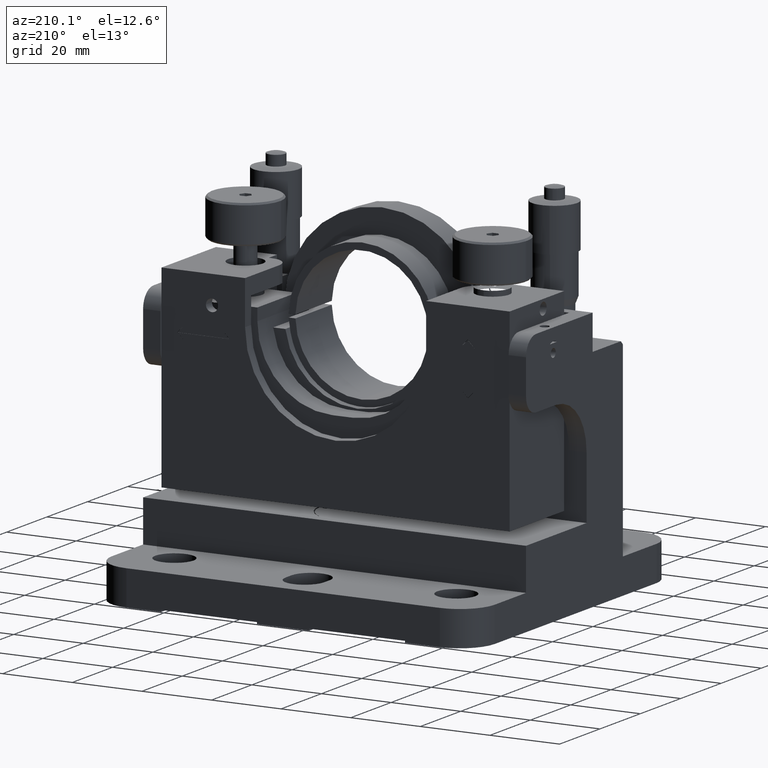
[diagram: clean part render]
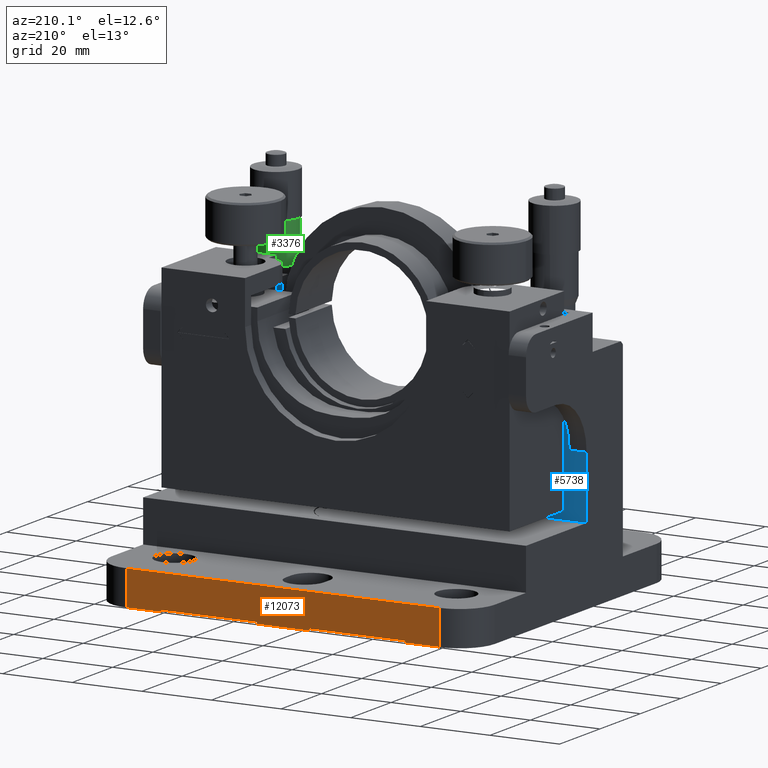
[diagram: same view with three faces highlighted in distinct colors, each labeled with its STEP entity id]
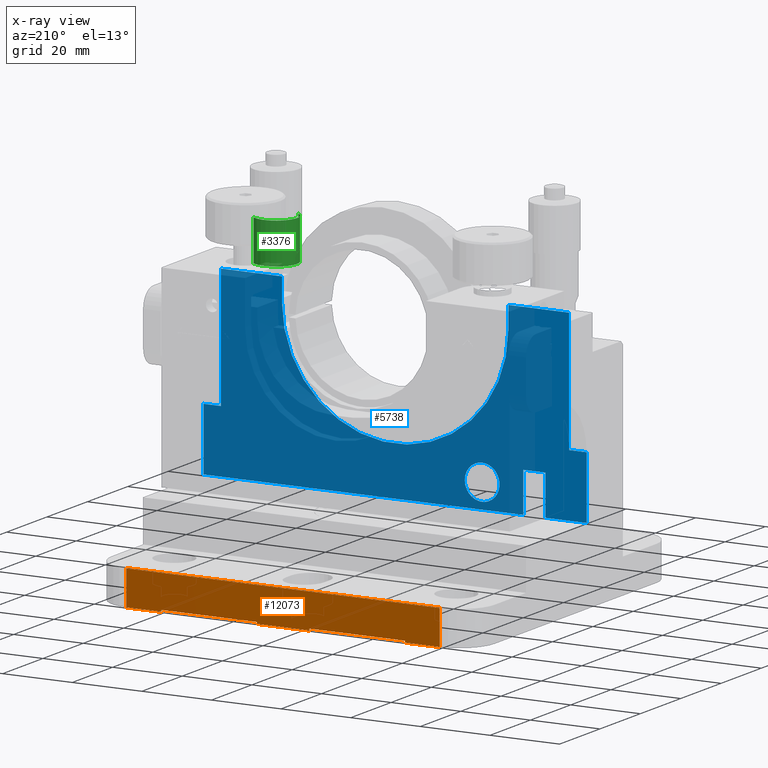
[diagram: x-ray of the same camera — body ghosted, the three highlighted faces saturated]
A machine part, auxiliary view with three faces highlighted in distinct colors.
The next image is the same camera in x-ray (body ghosted, the three faces saturated) — at least one of them is partly hidden behind the body in this view.
Their STEP definitions:

[orange] entity #12073 — the highlighted planar face has unit normal (0, -1, -0).
#140 = ORIENTED_EDGE ( 'NONE', *, *, #12176, .T. ) ;
#533 = CARTESIAN_POINT ( 'NONE',  ( -44.99999999999997200, 49.99999999999997200, -80.38971963390974900 ) ) ;
#564 = VERTEX_POINT ( 'NONE', #11352 ) ;
#645 = CARTESIAN_POINT ( 'NONE',  ( -44.99999999999997200, 49.99999999999997200, -80.38971963390974900 ) ) ;
#844 = EDGE_CURVE ( 'NONE', #11275, #14457, #12678, .T. ) ;
#1095 = ORIENTED_EDGE ( 'NONE', *, *, #15113, .F. ) ;
#1178 = CARTESIAN_POINT ( 'NONE',  ( -7.499999999999984000, 50.00000000000006400, -89.88971963390972100 ) ) ;
#1503 = VERTEX_POINT ( 'NONE', #2478 ) ;
#1947 = DIRECTION ( 'NONE',  ( 1.000000000000000000, 1.822474341419474400E-017, 4.369730032096560000E-016 ) ) ;
#1965 = EDGE_CURVE ( 'NONE', #3820, #3140, #14394, .T. ) ;
#2034 = EDGE_CURVE ( 'NONE', #13314, #3140, #10322, .T. ) ;
#2105 = CARTESIAN_POINT ( 'NONE',  ( 55.00000000000000700, 49.99999999999997900, -90.38971963390969200 ) ) ;
#2152 = CARTESIAN_POINT ( 'NONE',  ( -34.99999999999999300, 50.00000000000007100, -89.88971963390973500 ) ) ;
#2350 = LINE ( 'NONE', #15971, #5633 ) ;
#2478 = CARTESIAN_POINT ( 'NONE',  ( 7.500000000000016000, 50.00000000000006400, -90.38971963390970600 ) ) ;
#2550 = LINE ( 'NONE', #1178, #15764 ) ;
#2777 = CARTESIAN_POINT ( 'NONE',  ( 35.00000000000001400, 50.00000000000005700, -89.88971963390970600 ) ) ;
#3140 = VERTEX_POINT ( 'NONE', #645 ) ;
#3217 = DIRECTION ( 'NONE',  ( -1.000000000000000000, -1.822474341419474400E-017, -4.369730032096560000E-016 ) ) ;
#3456 = CARTESIAN_POINT ( 'NONE',  ( 7.500000000000015100, 50.00000000000006400, -89.88971963390970600 ) ) ;
#3583 = VECTOR ( 'NONE', #14148, 1000.000000000000000 ) ;
#3820 = VERTEX_POINT ( 'NONE', #13256 ) ;
#4179 = CARTESIAN_POINT ( 'NONE',  ( -7.499999999999983100, 50.00000000000006400, -90.38971963390972100 ) ) ;
#4364 = VECTOR ( 'NONE', #4732, 1000.000000000000000 ) ;
#4453 = ORIENTED_EDGE ( 'NONE', *, *, #6762, .F. ) ;
#4540 = DIRECTION ( 'NONE',  ( 1.822474341419475900E-017, -1.000000000000000000, -3.308291689980510700E-017 ) ) ;
#4732 = DIRECTION ( 'NONE',  ( 4.369730032096560000E-016, 3.308291689980511900E-017, -1.000000000000000000 ) ) ;
#4784 = ORIENTED_EDGE ( 'NONE', *, *, #6053, .T. ) ;
#4919 = VECTOR ( 'NONE', #6142, 1000.000000000000000 ) ;
#5126 = ORIENTED_EDGE ( 'NONE', *, *, #2034, .T. ) ;
#5293 = LINE ( 'NONE', #13577, #4919 ) ;
#5323 = LINE ( 'NONE', #13762, #3583 ) ;
#5502 = DIRECTION ( 'NONE',  ( 1.000000000000000000, -2.971795249452247700E-016, 4.369730032096560000E-016 ) ) ;
#5633 = VECTOR ( 'NONE', #14638, 1000.000000000000000 ) ;
#5888 = DIRECTION ( 'NONE',  ( 4.369730032096560000E-016, 3.308291689980511900E-017, -1.000000000000000000 ) ) ;
#5959 = CARTESIAN_POINT ( 'NONE',  ( -7.499999999999984000, 50.00000000000006400, -89.88971963390972100 ) ) ;
#6053 = EDGE_CURVE ( 'NONE', #1503, #11511, #5323, .T. ) ;
#6142 = DIRECTION ( 'NONE',  ( 4.369730032096560000E-016, 3.308291689980511900E-017, -1.000000000000000000 ) ) ;
#6240 = EDGE_CURVE ( 'NONE', #564, #1503, #15235, .T. ) ;
#6267 = ORIENTED_EDGE ( 'NONE', *, *, #8273, .F. ) ;
#6277 = VECTOR ( 'NONE', #5502, 1000.000000000000000 ) ;
#6365 = VECTOR ( 'NONE', #11495, 1000.000000000000000 ) ;
#6585 = CARTESIAN_POINT ( 'NONE',  ( 35.00000000000001400, 50.00000000000005700, -89.88971963390970600 ) ) ;
#6762 = EDGE_CURVE ( 'NONE', #564, #11474, #11719, .T. ) ;
#7169 = EDGE_CURVE ( 'NONE', #3820, #13376, #5293, .T. ) ;
#7229 = FACE_OUTER_BOUND ( 'NONE', #14266, .T. ) ;
#7425 = ORIENTED_EDGE ( 'NONE', *, *, #844, .T. ) ;
#7428 = CARTESIAN_POINT ( 'NONE',  ( -34.99999999999999300, 50.00000000000007100, -90.38971963390973500 ) ) ;
#7773 = CARTESIAN_POINT ( 'NONE',  ( 35.00000000000001400, 50.00000000000005700, -89.88971963390970600 ) ) ;
#8273 = EDGE_CURVE ( 'NONE', #11275, #11521, #2550, .T. ) ;
#8282 = PLANE ( 'NONE',  #15478 ) ;
#8678 = ORIENTED_EDGE ( 'NONE', *, *, #14768, .T. ) ;
#9003 = ORIENTED_EDGE ( 'NONE', *, *, #6240, .T. ) ;
#9130 = LINE ( 'NONE', #5959, #12600 ) ;
#9155 = VECTOR ( 'NONE', #10550, 1000.000000000000000 ) ;
#9432 = CARTESIAN_POINT ( 'NONE',  ( -44.99999999999997200, 49.99999999999997200, -90.38971963390973500 ) ) ;
#10322 = LINE ( 'NONE', #533, #9155 ) ;
#10394 = CARTESIAN_POINT ( 'NONE',  ( 55.00000000000000700, 49.99999999999997900, -80.38971963390969200 ) ) ;
#10550 = DIRECTION ( 'NONE',  ( -4.369730032096560000E-016, -3.308291689980511900E-017, 1.000000000000000000 ) ) ;
#10855 = CARTESIAN_POINT ( 'NONE',  ( 55.00000000000000700, 49.99999999999997900, -80.38971963390969200 ) ) ;
#11165 = ORIENTED_EDGE ( 'NONE', *, *, #7169, .T. ) ;
#11275 = VERTEX_POINT ( 'NONE', #2152 ) ;
#11352 = CARTESIAN_POINT ( 'NONE',  ( 7.500000000000016000, 49.99999999999997900, -89.88971963390970600 ) ) ;
#11442 = CARTESIAN_POINT ( 'NONE',  ( 35.00000000000001400, 50.00000000000005700, -90.38971963390969200 ) ) ;
#11474 = VERTEX_POINT ( 'NONE', #7773 ) ;
#11495 = DIRECTION ( 'NONE',  ( 4.369730032096560000E-016, 3.308291689980511900E-017, -1.000000000000000000 ) ) ;
#11511 = VERTEX_POINT ( 'NONE', #4179 ) ;
#11521 = VERTEX_POINT ( 'NONE', #12034 ) ;
#11719 = LINE ( 'NONE', #6585, #6277 ) ;
#11863 = VECTOR ( 'NONE', #12868, 1000.000000000000000 ) ;
#12034 = CARTESIAN_POINT ( 'NONE',  ( -7.499999999999984000, 50.00000000000006400, -89.88971963390972100 ) ) ;
#12073 = ADVANCED_FACE ( 'NONE', ( #7229 ), #8282, .F. ) ;
#12176 = EDGE_CURVE ( 'NONE', #14457, #13314, #2350, .T. ) ;
#12282 = VECTOR ( 'NONE', #5888, 1000.000000000000000 ) ;
#12370 = DIRECTION ( 'NONE',  ( 1.000000000000000000, -2.971795249452247700E-016, 4.369730032096560000E-016 ) ) ;
#12600 = VECTOR ( 'NONE', #15876, 1000.000000000000000 ) ;
#12678 = LINE ( 'NONE', #13328, #12282 ) ;
#12868 = DIRECTION ( 'NONE',  ( -1.000000000000000000, -1.822474341419474400E-017, -4.369730032096560000E-016 ) ) ;
#13256 = CARTESIAN_POINT ( 'NONE',  ( 45.00000000000000700, 49.99999999999997900, -80.38971963390970600 ) ) ;
#13314 = VERTEX_POINT ( 'NONE', #9432 ) ;
#13328 = CARTESIAN_POINT ( 'NONE',  ( -34.99999999999999300, 50.00000000000007100, -89.88971963390973500 ) ) ;
#13376 = VERTEX_POINT ( 'NONE', #14458 ) ;
#13577 = CARTESIAN_POINT ( 'NONE',  ( 45.00000000000000700, 49.99999999999997900, -80.38971963390970600 ) ) ;
#13762 = CARTESIAN_POINT ( 'NONE',  ( 55.00000000000000700, 49.99999999999997900, -90.38971963390969200 ) ) ;
#13951 = LINE ( 'NONE', #2105, #16067 ) ;
#14148 = DIRECTION ( 'NONE',  ( -1.000000000000000000, -1.822474341419474400E-017, -4.369730032096560000E-016 ) ) ;
#14265 = EDGE_CURVE ( 'NONE', #11521, #11511, #9130, .T. ) ;
#14266 = EDGE_LOOP ( 'NONE', ( #4453, #9003, #4784, #16110, #6267, #7425, #140, #5126, #14721, #11165, #8678, #1095 ) ) ;
#14394 = LINE ( 'NONE', #10394, #11863 ) ;
#14457 = VERTEX_POINT ( 'NONE', #7428 ) ;
#14458 = CARTESIAN_POINT ( 'NONE',  ( 45.00000000000000700, 49.99999999999997900, -90.38971963390969200 ) ) ;
#14638 = DIRECTION ( 'NONE',  ( -1.000000000000000000, -1.822474341419474400E-017, -4.369730032096560000E-016 ) ) ;
#14721 = ORIENTED_EDGE ( 'NONE', *, *, #1965, .F. ) ;
#14768 = EDGE_CURVE ( 'NONE', #13376, #15221, #13951, .T. ) ;
#14910 = LINE ( 'NONE', #2777, #6365 ) ;
#15113 = EDGE_CURVE ( 'NONE', #11474, #15221, #14910, .T. ) ;
#15221 = VERTEX_POINT ( 'NONE', #11442 ) ;
#15235 = LINE ( 'NONE', #3456, #4364 ) ;
#15478 = AXIS2_PLACEMENT_3D ( 'NONE', #10855, #4540, #1947 ) ;
#15764 = VECTOR ( 'NONE', #12370, 1000.000000000000000 ) ;
#15876 = DIRECTION ( 'NONE',  ( 4.369730032096560000E-016, 3.308291689980511900E-017, -1.000000000000000000 ) ) ;
#15971 = CARTESIAN_POINT ( 'NONE',  ( 55.00000000000000700, 49.99999999999997900, -90.38971963390969200 ) ) ;
#16067 = VECTOR ( 'NONE', #3217, 1000.000000000000000 ) ;
#16110 = ORIENTED_EDGE ( 'NONE', *, *, #14265, .F. ) ;

[blue] entity #5738 — the highlighted planar face has unit normal (-0, -1, -0).
#57 = CARTESIAN_POINT ( 'NONE',  ( -36.82500000000001000, -5.500000000000003600, -68.38971963390976300 ) ) ;
#218 = VECTOR ( 'NONE', #4824, 1000.000000000000000 ) ;
#231 = LINE ( 'NONE', #14367, #2748 ) ;
#336 = EDGE_CURVE ( 'NONE', #785, #1410, #443, .T. ) ;
#364 = DIRECTION ( 'NONE',  ( -4.491099181626659700E-016, -3.334829430364247800E-017, 1.000000000000000000 ) ) ;
#391 = CARTESIAN_POINT ( 'NONE',  ( -32.50000000000003600, -5.500000000000003600, -21.88971963390974600 ) ) ;
#393 = VECTOR ( 'NONE', #364, 1000.000000000000000 ) ;
#443 = LINE ( 'NONE', #7900, #5878 ) ;
#636 = VERTEX_POINT ( 'NONE', #15643 ) ;
#673 = EDGE_CURVE ( 'NONE', #12653, #4477, #231, .T. ) ;
#785 = VERTEX_POINT ( 'NONE', #8511 ) ;
#831 = CARTESIAN_POINT ( 'NONE',  ( -50.00000000000002100, -5.500000000000000000, -15.38971963390975400 ) ) ;
#944 = EDGE_CURVE ( 'NONE', #1410, #15987, #4319, .T. ) ;
#984 = VERTEX_POINT ( 'NONE', #11378 ) ;
#1101 = DIRECTION ( 'NONE',  ( -1.000000000000000000, 1.457167719820518000E-016, -4.491099181626661700E-016 ) ) ;
#1308 = AXIS2_PLACEMENT_3D ( 'NONE', #831, #7143, #8458 ) ;
#1394 = EDGE_CURVE ( 'NONE', #8099, #6543, #5473, .T. ) ;
#1410 = VERTEX_POINT ( 'NONE', #4366 ) ;
#1452 = CARTESIAN_POINT ( 'NONE',  ( -25.00000000000001800, -5.500000000000001800, -61.38971963390974900 ) ) ;
#1622 = FACE_OUTER_BOUND ( 'NONE', #3647, .T. ) ;
#1690 = CIRCLE ( 'NONE', #7720, 32.50000000000000700 ) ;
#1866 = VECTOR ( 'NONE', #14020, 1000.000000000000000 ) ;
#1882 = EDGE_CURVE ( 'NONE', #8099, #5975, #10338, .T. ) ;
#1944 = EDGE_CURVE ( 'NONE', #10324, #636, #15172, .T. ) ;
#1956 = DIRECTION ( 'NONE',  ( -4.491099181626659700E-016, 6.302523213951346200E-017, 1.000000000000000000 ) ) ;
#2017 = AXIS2_PLACEMENT_3D ( 'NONE', #1452, #11200, #3748 ) ;
#2276 = CARTESIAN_POINT ( 'NONE',  ( 32.49999999999997900, -5.500000000000011500, -21.88971963390971700 ) ) ;
#2298 = VERTEX_POINT ( 'NONE', #2306 ) ;
#2306 = CARTESIAN_POINT ( 'NONE',  ( -50.00000000000002100, -5.500000000000000000, -15.38971963390975400 ) ) ;
#2366 = CARTESIAN_POINT ( 'NONE',  ( -32.50000000000003600, -5.500000000000003600, -15.38971963390974700 ) ) ;
#2443 = LINE ( 'NONE', #5463, #15651 ) ;
#2591 = CARTESIAN_POINT ( 'NONE',  ( 49.99999999999997900, -5.500000000000013300, -15.38971963390971200 ) ) ;
#2723 = CARTESIAN_POINT ( 'NONE',  ( 49.99999999999997900, -5.500000000000013300, -15.38971963390971200 ) ) ;
#2726 = EDGE_CURVE ( 'NONE', #6543, #14090, #13401, .T. ) ;
#2741 = CARTESIAN_POINT ( 'NONE',  ( -50.00000000000001400, -5.499999999999998200, -50.38971963390975600 ) ) ;
#2748 = VECTOR ( 'NONE', #15551, 1000.000000000000000 ) ;
#2812 = CARTESIAN_POINT ( 'NONE',  ( -55.00000000000000000, -5.499999999999998200, -68.38971963390976300 ) ) ;
#2888 = DIRECTION ( 'NONE',  ( 4.491099181626659700E-016, 3.334829430364247800E-017, -1.000000000000000000 ) ) ;
#3093 = EDGE_CURVE ( 'NONE', #636, #10324, #11245, .T. ) ;
#3168 = CARTESIAN_POINT ( 'NONE',  ( -36.82500000000001700, -5.500000000000005300, -56.88971963390974900 ) ) ;
#3401 = ORIENTED_EDGE ( 'NONE', *, *, #10796, .F. ) ;
#3459 = CARTESIAN_POINT ( 'NONE',  ( -55.00000000000000700, -5.499999999999996400, -50.38971963390975600 ) ) ;
#3632 = VERTEX_POINT ( 'NONE', #10759 ) ;
#3647 = EDGE_LOOP ( 'NONE', ( #10598, #13939, #15220, #15396, #7343, #12449, #5383, #6864, #10447, #3401, #11329, #13193, #15510, #8840, #9848, #14652 ) ) ;
#3748 = DIRECTION ( 'NONE',  ( -1.000000000000000000, 1.734723475976806800E-016, 0.0000000000000000000 ) ) ;
#3897 = VECTOR ( 'NONE', #6428, 1000.000000000000000 ) ;
#3979 = EDGE_CURVE ( 'NONE', #2298, #4524, #11635, .T. ) ;
#3991 = LINE ( 'NONE', #15471, #14879 ) ;
#4319 = LINE ( 'NONE', #13699, #218 ) ;
#4366 = CARTESIAN_POINT ( 'NONE',  ( -43.17500000000000400, -5.500000000000003600, -68.38971963390976300 ) ) ;
#4477 = VERTEX_POINT ( 'NONE', #3459 ) ;
#4524 = VERTEX_POINT ( 'NONE', #2366 ) ;
#4690 = LINE ( 'NONE', #2812, #3897 ) ;
#4824 = DIRECTION ( 'NONE',  ( -1.000000000000000000, 1.457167719820518000E-016, -4.491099181626661700E-016 ) ) ;
#4832 = EDGE_CURVE ( 'NONE', #3632, #5975, #7328, .T. ) ;
#5152 = EDGE_CURVE ( 'NONE', #6743, #14090, #2443, .T. ) ;
#5383 = ORIENTED_EDGE ( 'NONE', *, *, #3979, .T. ) ;
#5463 = CARTESIAN_POINT ( 'NONE',  ( 50.00000000000000000, -5.500000000000011500, -68.38971963390972100 ) ) ;
#5473 = LINE ( 'NONE', #14828, #9570 ) ;
#5738 = ADVANCED_FACE ( 'NONE', ( #15249, #1622 ), #14590, .F. ) ;
#5878 = VECTOR ( 'NONE', #9174, 1000.000000000000000 ) ;
#5975 = VERTEX_POINT ( 'NONE', #57 ) ;
#6304 = CARTESIAN_POINT ( 'NONE',  ( 50.00000000000000000, -5.500000000000011500, -68.38971963390972100 ) ) ;
#6428 = DIRECTION ( 'NONE',  ( -4.491099181626659700E-016, 6.302523213951346200E-017, 1.000000000000000000 ) ) ;
#6543 = VERTEX_POINT ( 'NONE', #9549 ) ;
#6738 = VERTEX_POINT ( 'NONE', #391 ) ;
#6743 = VERTEX_POINT ( 'NONE', #12721 ) ;
#6864 = ORIENTED_EDGE ( 'NONE', *, *, #10425, .F. ) ;
#6957 = DIRECTION ( 'NONE',  ( -1.000000000000000000, 1.734723475976806800E-016, 0.0000000000000000000 ) ) ;
#7143 = DIRECTION ( 'NONE',  ( -1.457167719820517700E-016, -1.000000000000000000, -3.334829430364252200E-017 ) ) ;
#7320 = DIRECTION ( 'NONE',  ( -4.491099181626659700E-016, -3.334829430364247800E-017, 1.000000000000000000 ) ) ;
#7328 = LINE ( 'NONE', #3168, #15104 ) ;
#7343 = ORIENTED_EDGE ( 'NONE', *, *, #673, .F. ) ;
#7720 = AXIS2_PLACEMENT_3D ( 'NONE', #10973, #13341, #11080 ) ;
#7752 = DIRECTION ( 'NONE',  ( 1.000000000000000000, -1.457167719820518000E-016, 4.491099181626661700E-016 ) ) ;
#7900 = CARTESIAN_POINT ( 'NONE',  ( -43.17500000000001100, -5.500000000000003600, -56.88971963390975600 ) ) ;
#8099 = VERTEX_POINT ( 'NONE', #10316 ) ;
#8113 = ORIENTED_EDGE ( 'NONE', *, *, #3093, .F. ) ;
#8458 = DIRECTION ( 'NONE',  ( 1.000000000000000000, -1.457167719820518000E-016, 4.491099181626661700E-016 ) ) ;
#8511 = CARTESIAN_POINT ( 'NONE',  ( -43.17500000000001100, -5.500000000000000000, -56.88971963390975600 ) ) ;
#8585 = VECTOR ( 'NONE', #12657, 1000.000000000000000 ) ;
#8840 = ORIENTED_EDGE ( 'NONE', *, *, #1394, .F. ) ;
#9159 = CARTESIAN_POINT ( 'NONE',  ( -55.00000000000000000, -5.499999999999998200, -68.38971963390976300 ) ) ;
#9174 = DIRECTION ( 'NONE',  ( 4.491099181626659700E-016, 3.334829430364247800E-017, -1.000000000000000000 ) ) ;
#9275 = VERTEX_POINT ( 'NONE', #2276 ) ;
#9378 = EDGE_CURVE ( 'NONE', #15987, #4477, #4690, .T. ) ;
#9453 = CARTESIAN_POINT ( 'NONE',  ( 49.99999999999999300, -5.500000000000011500, -50.38971963390970600 ) ) ;
#9544 = DIRECTION ( 'NONE',  ( 1.457167719820518000E-016, 1.000000000000000000, 3.334829430364252200E-017 ) ) ;
#9549 = CARTESIAN_POINT ( 'NONE',  ( 54.99999999999999300, -5.500000000000011500, -50.38971963390970600 ) ) ;
#9570 = VECTOR ( 'NONE', #1956, 1000.000000000000000 ) ;
#9848 = ORIENTED_EDGE ( 'NONE', *, *, #1882, .T. ) ;
#9969 = DIRECTION ( 'NONE',  ( 1.000000000000000000, -1.457167719820518000E-016, 4.491099181626661700E-016 ) ) ;
#10085 = VECTOR ( 'NONE', #7320, 1000.000000000000000 ) ;
#10316 = CARTESIAN_POINT ( 'NONE',  ( 55.00000000000000000, -5.500000000000013300, -68.38971963390972100 ) ) ;
#10324 = VERTEX_POINT ( 'NONE', #12135 ) ;
#10338 = LINE ( 'NONE', #6304, #8585 ) ;
#10425 = EDGE_CURVE ( 'NONE', #6738, #4524, #10476, .T. ) ;
#10447 = ORIENTED_EDGE ( 'NONE', *, *, #14326, .F. ) ;
#10476 = LINE ( 'NONE', #14865, #10085 ) ;
#10598 = ORIENTED_EDGE ( 'NONE', *, *, #15900, .F. ) ;
#10759 = CARTESIAN_POINT ( 'NONE',  ( -36.82500000000001700, -5.500000000000005300, -56.88971963390974900 ) ) ;
#10796 = EDGE_CURVE ( 'NONE', #984, #9275, #11981, .T. ) ;
#10973 = CARTESIAN_POINT ( 'NONE',  ( -2.729630804992448900E-014, -5.500000000000006200, -21.88971963390973100 ) ) ;
#11080 = DIRECTION ( 'NONE',  ( 1.000000000000000000, -1.334402673828312800E-016, 4.270088556250601200E-016 ) ) ;
#11200 = DIRECTION ( 'NONE',  ( 1.457167719820518000E-016, 1.000000000000000000, 3.334829430364252200E-017 ) ) ;
#11245 = CIRCLE ( 'NONE', #15986, 5.000000000000000900 ) ;
#11329 = ORIENTED_EDGE ( 'NONE', *, *, #15208, .T. ) ;
#11378 = CARTESIAN_POINT ( 'NONE',  ( 32.49999999999997900, -5.500000000000011500, -15.38971963390971900 ) ) ;
#11620 = CARTESIAN_POINT ( 'NONE',  ( -50.00000000000000000, -5.499999999999998200, -68.38971963390974900 ) ) ;
#11635 = LINE ( 'NONE', #2591, #13347 ) ;
#11818 = VECTOR ( 'NONE', #1101, 1000.000000000000000 ) ;
#11971 = VECTOR ( 'NONE', #7752, 1000.000000000000000 ) ;
#11981 = LINE ( 'NONE', #15109, #1866 ) ;
#12135 = CARTESIAN_POINT ( 'NONE',  ( -30.00000000000002100, -5.500000000000000900, -61.38971963390974900 ) ) ;
#12443 = LINE ( 'NONE', #11620, #393 ) ;
#12449 = ORIENTED_EDGE ( 'NONE', *, *, #12597, .T. ) ;
#12597 = EDGE_CURVE ( 'NONE', #12653, #2298, #12443, .T. ) ;
#12653 = VERTEX_POINT ( 'NONE', #2741 ) ;
#12657 = DIRECTION ( 'NONE',  ( -1.000000000000000000, 1.457167719820518000E-016, -4.491099181626661700E-016 ) ) ;
#12721 = CARTESIAN_POINT ( 'NONE',  ( 49.99999999999997900, -5.500000000000013300, -15.38971963390971200 ) ) ;
#13050 = CARTESIAN_POINT ( 'NONE',  ( 54.99999999999999300, -5.500000000000011500, -50.38971963390970600 ) ) ;
#13193 = ORIENTED_EDGE ( 'NONE', *, *, #5152, .T. ) ;
#13341 = DIRECTION ( 'NONE',  ( 1.457167719820518000E-016, 1.000000000000000000, 3.334829430364252200E-017 ) ) ;
#13347 = VECTOR ( 'NONE', #9969, 1000.000000000000000 ) ;
#13401 = LINE ( 'NONE', #13050, #11818 ) ;
#13605 = EDGE_LOOP ( 'NONE', ( #16044, #8113 ) ) ;
#13699 = CARTESIAN_POINT ( 'NONE',  ( 50.00000000000000000, -5.500000000000011500, -68.38971963390972100 ) ) ;
#13939 = ORIENTED_EDGE ( 'NONE', *, *, #336, .T. ) ;
#14020 = DIRECTION ( 'NONE',  ( 4.491099181626659700E-016, 3.334829430364247800E-017, -1.000000000000000000 ) ) ;
#14090 = VERTEX_POINT ( 'NONE', #9453 ) ;
#14326 = EDGE_CURVE ( 'NONE', #9275, #6738, #1690, .T. ) ;
#14366 = DIRECTION ( 'NONE',  ( 4.491099181626659700E-016, 3.334829430364247800E-017, -1.000000000000000000 ) ) ;
#14367 = CARTESIAN_POINT ( 'NONE',  ( 54.99999999999999300, -5.500000000000011500, -50.38971963390970600 ) ) ;
#14404 = CARTESIAN_POINT ( 'NONE',  ( -25.00000000000001800, -5.500000000000001800, -61.38971963390974900 ) ) ;
#14590 = PLANE ( 'NONE',  #1308 ) ;
#14652 = ORIENTED_EDGE ( 'NONE', *, *, #4832, .F. ) ;
#14828 = CARTESIAN_POINT ( 'NONE',  ( 55.00000000000000000, -5.500000000000013300, -68.38971963390972100 ) ) ;
#14865 = CARTESIAN_POINT ( 'NONE',  ( -32.50000000000005000, -5.500000000000003600, 15.62365372853585100 ) ) ;
#14879 = VECTOR ( 'NONE', #15524, 1000.000000000000000 ) ;
#15104 = VECTOR ( 'NONE', #14366, 1000.000000000000000 ) ;
#15109 = CARTESIAN_POINT ( 'NONE',  ( 32.49999999999997900, -5.500000000000011500, -21.88971963390971700 ) ) ;
#15172 = CIRCLE ( 'NONE', #2017, 5.000000000000000900 ) ;
#15208 = EDGE_CURVE ( 'NONE', #984, #6743, #15290, .T. ) ;
#15220 = ORIENTED_EDGE ( 'NONE', *, *, #944, .T. ) ;
#15249 = FACE_BOUND ( 'NONE', #13605, .T. ) ;
#15290 = LINE ( 'NONE', #2723, #11971 ) ;
#15396 = ORIENTED_EDGE ( 'NONE', *, *, #9378, .T. ) ;
#15471 = CARTESIAN_POINT ( 'NONE',  ( -50.00000000000000700, -5.500000000000000000, -56.88971963390975600 ) ) ;
#15510 = ORIENTED_EDGE ( 'NONE', *, *, #2726, .F. ) ;
#15524 = DIRECTION ( 'NONE',  ( 1.000000000000000000, -1.457167719820518000E-016, 4.491099181626661700E-016 ) ) ;
#15551 = DIRECTION ( 'NONE',  ( -1.000000000000000000, 1.457167719820518000E-016, -4.491099181626661700E-016 ) ) ;
#15643 = CARTESIAN_POINT ( 'NONE',  ( -20.00000000000001800, -5.500000000000002700, -61.38971963390974900 ) ) ;
#15651 = VECTOR ( 'NONE', #2888, 1000.000000000000000 ) ;
#15900 = EDGE_CURVE ( 'NONE', #785, #3632, #3991, .T. ) ;
#15986 = AXIS2_PLACEMENT_3D ( 'NONE', #14404, #9544, #6957 ) ;
#15987 = VERTEX_POINT ( 'NONE', #9159 ) ;
#16044 = ORIENTED_EDGE ( 'NONE', *, *, #1944, .F. ) ;

[green] entity #3376 — the highlighted cylindrical surface (edge-blend (fillet) strip) has radius 6 mm, axis along (-0, 0, 1).
#288 = DIRECTION ( 'NONE',  ( -4.430707501766272700E-016, 1.980184103056415700E-016, 1.000000000000000000 ) ) ;
#717 = CARTESIAN_POINT ( 'NONE',  ( 36.32732305373850300, -20.24462264552239800, -14.36269603990125700 ) ) ;
#818 = EDGE_CURVE ( 'NONE', #16106, #15239, #2945, .T. ) ;
#1125 = FACE_OUTER_BOUND ( 'NONE', #12090, .T. ) ;
#1144 = DIRECTION ( 'NONE',  ( 0.6121128243769125000, 0.7907704409203211200, 0.0000000000000000000 ) ) ;
#1149 = CIRCLE ( 'NONE', #2890, 5.999999999999994700 ) ;
#2092 = DIRECTION ( 'NONE',  ( -4.430707501766272700E-016, 1.980184103056415700E-016, 1.000000000000000000 ) ) ;
#2175 = DIRECTION ( 'NONE',  ( 0.6121128243769125000, 0.7907704409203211200, 0.0000000000000000000 ) ) ;
#2246 = ORIENTED_EDGE ( 'NONE', *, *, #4953, .T. ) ;
#2318 = CARTESIAN_POINT ( 'NONE',  ( 43.67267694626146800, -10.75537735447855400, -14.36269603990125700 ) ) ;
#2615 = CARTESIAN_POINT ( 'NONE',  ( 43.67267694626144700, -10.75537735447854900, -2.647078946790968300 ) ) ;
#2890 = AXIS2_PLACEMENT_3D ( 'NONE', #4800, #2092, #10833 ) ;
#2945 = LINE ( 'NONE', #5776, #3547 ) ;
#3221 = DIRECTION ( 'NONE',  ( -4.430707501766272700E-016, 1.980184103056415700E-016, 1.000000000000000000 ) ) ;
#3376 = ADVANCED_FACE ( 'NONE', ( #1125 ), #12969, .T. ) ;
#3433 = CIRCLE ( 'NONE', #6727, 5.999999999999994700 ) ;
#3547 = VECTOR ( 'NONE', #10741, 1000.000000000000000 ) ;
#3895 = ORIENTED_EDGE ( 'NONE', *, *, #818, .F. ) ;
#4800 = CARTESIAN_POINT ( 'NONE',  ( 39.99999999999997200, -15.50000000000047300, -2.647078946790969200 ) ) ;
#4953 = EDGE_CURVE ( 'NONE', #16106, #7768, #3433, .T. ) ;
#5218 = EDGE_CURVE ( 'NONE', #7768, #7345, #5951, .T. ) ;
#5776 = CARTESIAN_POINT ( 'NONE',  ( 43.67267694626143300, -10.75537735447853800, 26.39394412241664900 ) ) ;
#5951 = LINE ( 'NONE', #15179, #7518 ) ;
#6677 = CARTESIAN_POINT ( 'NONE',  ( 36.32732305373850300, -20.24462264552240100, -2.647078946790970100 ) ) ;
#6727 = AXIS2_PLACEMENT_3D ( 'NONE', #9659, #3221, #2175 ) ;
#7345 = VERTEX_POINT ( 'NONE', #6677 ) ;
#7518 = VECTOR ( 'NONE', #288, 1000.000000000000000 ) ;
#7768 = VERTEX_POINT ( 'NONE', #717 ) ;
#9659 = CARTESIAN_POINT ( 'NONE',  ( 39.99999999999999300, -15.50000000000047600, -14.36269603990125700 ) ) ;
#10741 = DIRECTION ( 'NONE',  ( -4.430707501766272700E-016, 1.980184103056415700E-016, 1.000000000000000000 ) ) ;
#10833 = DIRECTION ( 'NONE',  ( 0.6121128243769125000, 0.7907704409203211200, 1.445602896647340600E-016 ) ) ;
#11079 = ORIENTED_EDGE ( 'NONE', *, *, #5218, .T. ) ;
#11106 = CARTESIAN_POINT ( 'NONE',  ( 39.99999999999995700, -15.50000000000046200, 26.39394412241664900 ) ) ;
#11261 = DIRECTION ( 'NONE',  ( -4.430707501766272700E-016, 1.980184103056415700E-016, 1.000000000000000000 ) ) ;
#12090 = EDGE_LOOP ( 'NONE', ( #2246, #11079, #15824, #3895 ) ) ;
#12969 = CYLINDRICAL_SURFACE ( 'NONE', #14031, 5.999999999999994700 ) ;
#13613 = EDGE_CURVE ( 'NONE', #15239, #7345, #1149, .T. ) ;
#14031 = AXIS2_PLACEMENT_3D ( 'NONE', #11106, #11261, #1144 ) ;
#15179 = CARTESIAN_POINT ( 'NONE',  ( 36.32732305373848900, -20.24462264552238400, 26.39394412241664900 ) ) ;
#15239 = VERTEX_POINT ( 'NONE', #2615 ) ;
#15824 = ORIENTED_EDGE ( 'NONE', *, *, #13613, .F. ) ;
#16106 = VERTEX_POINT ( 'NONE', #2318 ) ;